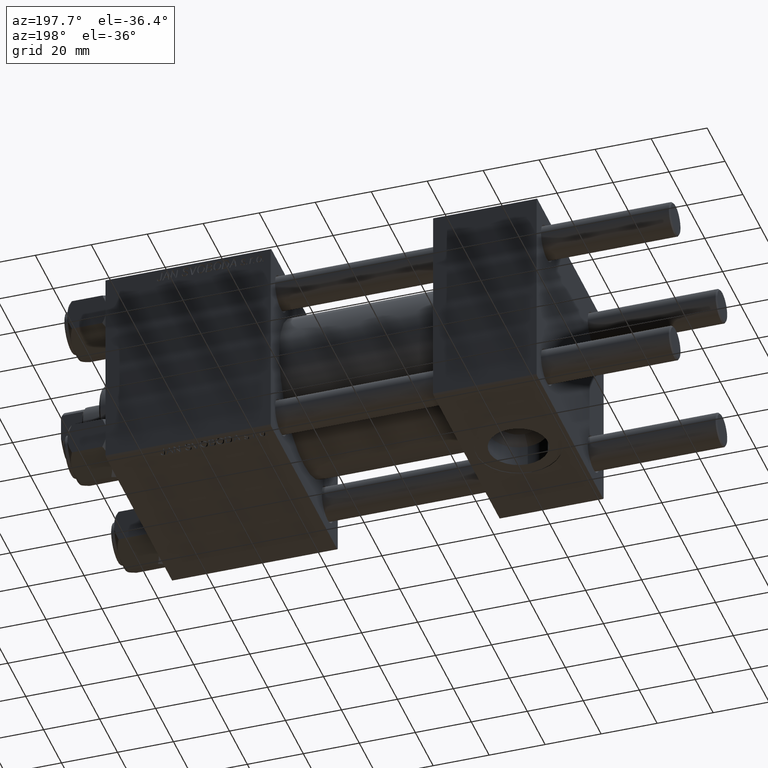
[diagram: clean part render]
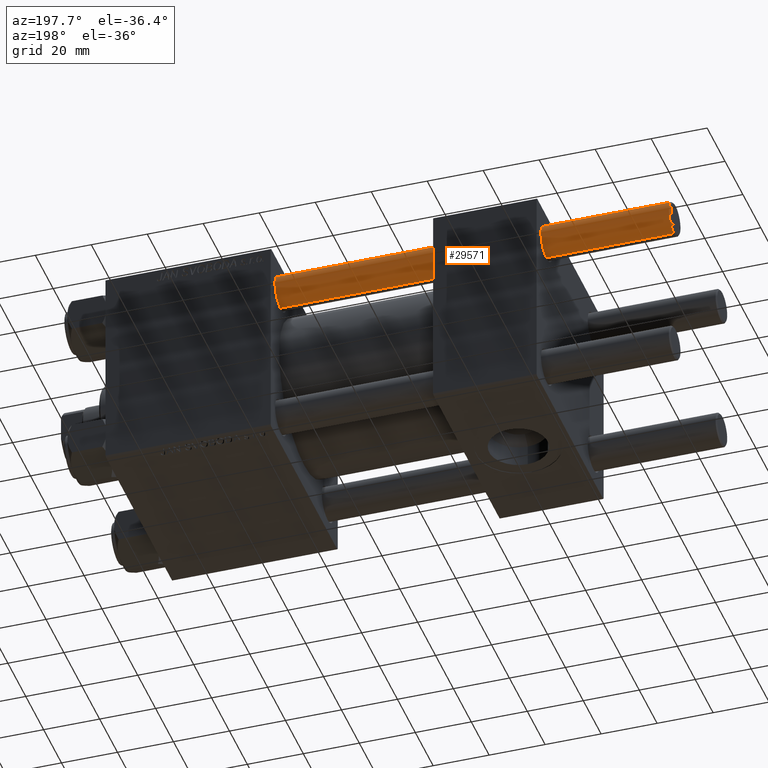
[diagram: same view with one face highlighted and labeled with its STEP entity id]
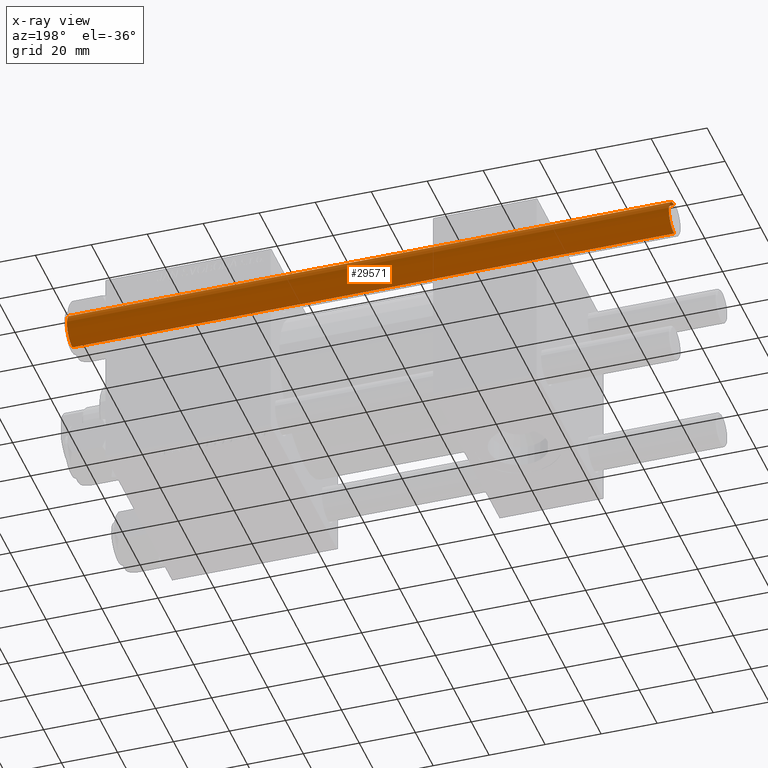
[diagram: x-ray of the same camera — body ghosted, the highlighted face saturated]
A machine part, auxiliary view. The second image highlights one B-rep face of the part: STEP entity #29571.
The next image is the same camera in x-ray: the body ghosted, the highlighted face saturated — about 0% of this face is hidden behind the body in this view.
In plain terms, the highlighted cylindrical surface (edge-blend (fillet) strip) has radius 6 mm, axis along (-1, -0, -0).
Its self-contained STEP definition (entity closure, byte-faithful):
#1066 = EDGE_LOOP ( 'NONE', ( #7597, #30246, #14151, #25788 ) ) ;
#3262 = EDGE_CURVE ( 'NONE', #30713, #4557, #39268, .T. ) ;
#3357 = VECTOR ( 'NONE', #20911, 1000.000000000000000 ) ;
#4372 = FACE_OUTER_BOUND ( 'NONE', #1066, .T. ) ;
#4557 = VERTEX_POINT ( 'NONE', #31827 ) ;
#7442 = DIRECTION ( 'NONE',  ( 1.000000000000000000, 0.000000000000000000, 0.000000000000000000 ) ) ;
#7597 = ORIENTED_EDGE ( 'NONE', *, *, #25188, .T. ) ;
#9721 = CIRCLE ( 'NONE', #37819, 6.000000000000000888 ) ;
#11524 = EDGE_CURVE ( 'NONE', #4557, #35840, #42188, .T. ) ;
#11785 = EDGE_CURVE ( 'NONE', #41709, #35840, #39527, .T. ) ;
#14151 = ORIENTED_EDGE ( 'NONE', *, *, #11524, .T. ) ;
#14689 = CARTESIAN_POINT ( 'NONE',  ( -6.000000000000000888, 0.000000000000000000, 215.5000000000000284 ) ) ;
#18698 = DIRECTION ( 'NONE',  ( 1.000000000000000000, 0.000000000000000000, 0.000000000000000000 ) ) ;
#18994 = DIRECTION ( 'NONE',  ( -0.000000000000000000, -0.000000000000000000, -1.000000000000000000 ) ) ;
#19488 = CYLINDRICAL_SURFACE ( 'NONE', #34629, 6.000000000000000888 ) ;
#20415 = DIRECTION ( 'NONE',  ( -0.000000000000000000, -0.000000000000000000, -1.000000000000000000 ) ) ;
#20911 = DIRECTION ( 'NONE',  ( -0.000000000000000000, -0.000000000000000000, -1.000000000000000000 ) ) ;
#25188 = EDGE_CURVE ( 'NONE', #41709, #30713, #9721, .T. ) ;
#25788 = ORIENTED_EDGE ( 'NONE', *, *, #11785, .F. ) ;
#25997 = CARTESIAN_POINT ( 'NONE',  ( 6.000000000000000888, 7.347880794884120722E-16, 215.5000000000000284 ) ) ;
#26244 = CARTESIAN_POINT ( 'NONE',  ( 0.000000000000000000, 0.000000000000000000, 0.5000000000000004441 ) ) ;
#26568 = DIRECTION ( 'NONE',  ( 0.000000000000000000, 0.000000000000000000, -1.000000000000000000 ) ) ;
#26977 = VECTOR ( 'NONE', #20415, 1000.000000000000000 ) ;
#29571 = ADVANCED_FACE ( 'NONE', ( #4372 ), #19488, .T. ) ;
#30246 = ORIENTED_EDGE ( 'NONE', *, *, #3262, .T. ) ;
#30713 = VERTEX_POINT ( 'NONE', #25997 ) ;
#31727 = CARTESIAN_POINT ( 'NONE',  ( 6.000000000000000888, 7.347880794884120722E-16, 216.0000000000000000 ) ) ;
#31827 = CARTESIAN_POINT ( 'NONE',  ( 6.000000000000000888, 7.347880794884120722E-16, 0.5000000000000004441 ) ) ;
#32489 = CARTESIAN_POINT ( 'NONE',  ( -6.000000000000000888, 0.000000000000000000, 216.0000000000000000 ) ) ;
#34629 = AXIS2_PLACEMENT_3D ( 'NONE', #37865, #18994, #34832 ) ;
#34832 = DIRECTION ( 'NONE',  ( -1.000000000000000000, 0.000000000000000000, 0.000000000000000000 ) ) ;
#35840 = VERTEX_POINT ( 'NONE', #39680 ) ;
#37559 = DIRECTION ( 'NONE',  ( -0.000000000000000000, -0.000000000000000000, 1.000000000000000000 ) ) ;
#37819 = AXIS2_PLACEMENT_3D ( 'NONE', #49693, #26568, #7442 ) ;
#37865 = CARTESIAN_POINT ( 'NONE',  ( 0.000000000000000000, 0.000000000000000000, 216.0000000000000000 ) ) ;
#39268 = LINE ( 'NONE', #31727, #3357 ) ;
#39527 = LINE ( 'NONE', #32489, #26977 ) ;
#39680 = CARTESIAN_POINT ( 'NONE',  ( -6.000000000000000888, 0.000000000000000000, 0.5000000000000004441 ) ) ;
#41709 = VERTEX_POINT ( 'NONE', #14689 ) ;
#42188 = CIRCLE ( 'NONE', #48628, 6.000000000000000888 ) ;
#48628 = AXIS2_PLACEMENT_3D ( 'NONE', #26244, #37559, #18698 ) ;
#49693 = CARTESIAN_POINT ( 'NONE',  ( 0.000000000000000000, 0.000000000000000000, 215.5000000000000284 ) ) ;